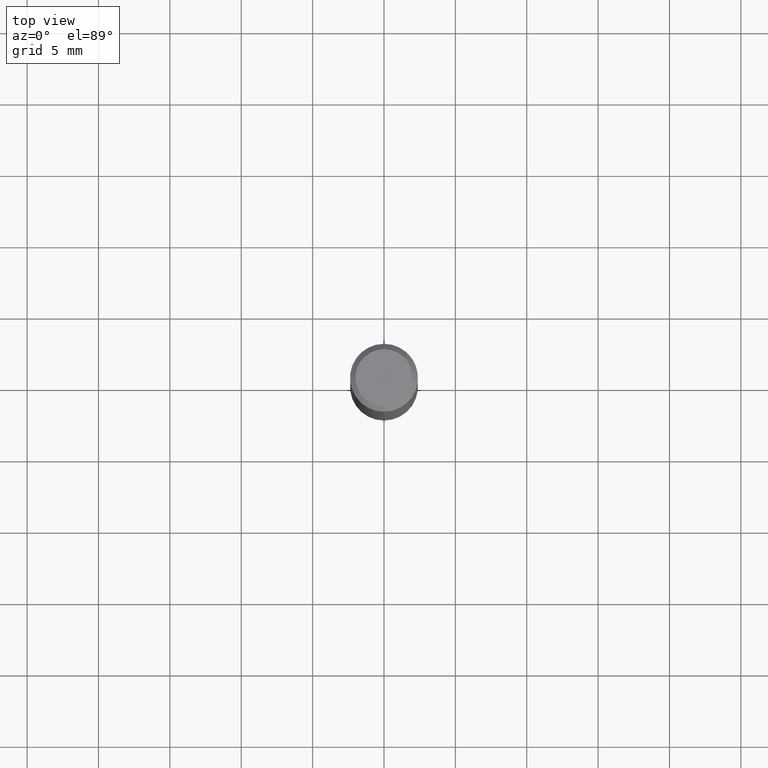
[diagram: clean part render]
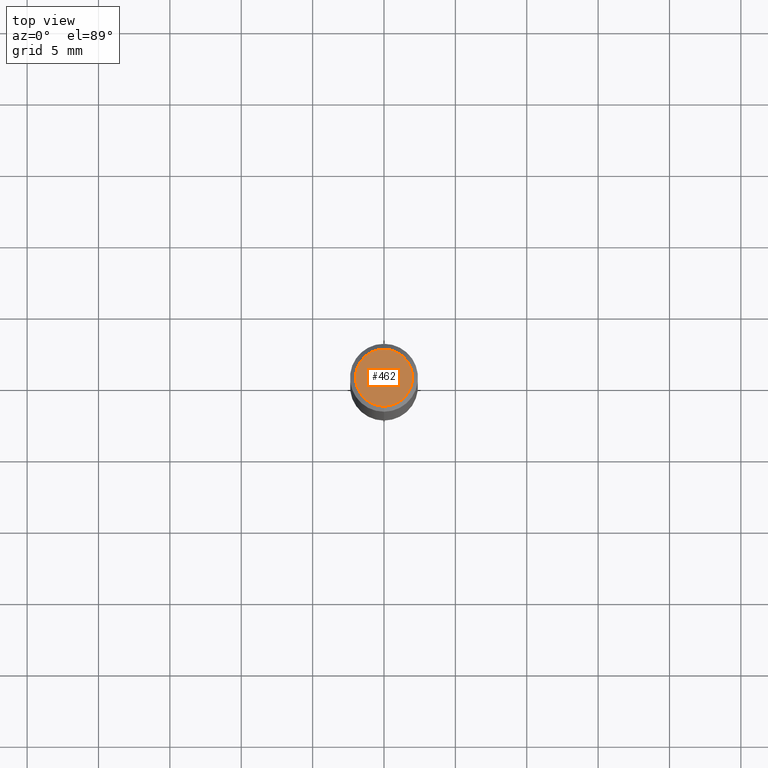
[diagram: same view with one face highlighted and labeled with its STEP entity id]
A machine part, top view. The second image highlights one B-rep face of the part: STEP entity #462.
In plain terms, the highlighted planar face has unit normal (0, -0, -1).
Its self-contained STEP definition (entity closure, byte-faithful):
#12 = DIRECTION ( 'NONE',  ( -6.982962677686265922E-15, -1.000000000000000000, 3.487348433700747709E-15 ) ) ;
#19 = DIRECTION ( 'NONE',  ( 2.448354798421115077E-29, -3.487348433700746920E-15, -1.000000000000000000 ) ) ;
#25 = DIRECTION ( 'NONE',  ( -2.448354798421115077E-29, 3.487348433700747315E-15, 1.000000000000000000 ) ) ;
#82 = CARTESIAN_POINT ( 'NONE',  ( 4.968921432832621187E-45, -7.077552806948386827E-31, -2.029494024328891706E-16 ) ) ;
#106 = FACE_OUTER_BOUND ( 'NONE', #492, .T. ) ;
#115 = AXIS2_PLACEMENT_3D ( 'NONE', #288, #25, #183 ) ;
#121 = CIRCLE ( 'NONE', #352, 0.07874999999999997280 ) ;
#122 = ORIENTED_EDGE ( 'NONE', *, *, #386, .T. ) ;
#183 = DIRECTION ( 'NONE',  ( -6.982962677686265922E-15, -1.000000000000000000, 3.487348433700747709E-15 ) ) ;
#214 = CARTESIAN_POINT ( 'NONE',  ( 6.022805309504405235E-16, 0.07874999999999997280, -4.775780915868230078E-16 ) ) ;
#287 = AXIS2_PLACEMENT_3D ( 'NONE', #423, #19, #289 ) ;
#288 = CARTESIAN_POINT ( 'NONE',  ( 4.968921432832621187E-45, -7.077552806948386827E-31, -2.029494024328891706E-16 ) ) ;
#289 = DIRECTION ( 'NONE',  ( 6.982962677686265922E-15, 1.000000000000000000, -3.487348433700746920E-15 ) ) ;
#296 = CARTESIAN_POINT ( 'NONE',  ( -5.917179523077941910E-16, -0.07874999999999997280, 7.167928672104461734E-17 ) ) ;
#320 = CIRCLE ( 'NONE', #115, 0.07874999999999997280 ) ;
#347 = ORIENTED_EDGE ( 'NONE', *, *, #350, .T. ) ;
#350 = EDGE_CURVE ( 'NONE', #391, #403, #121, .T. ) ;
#352 = AXIS2_PLACEMENT_3D ( 'NONE', #82, #368, #12 ) ;
#368 = DIRECTION ( 'NONE',  ( -2.448354798421115077E-29, 3.487348433700747315E-15, 1.000000000000000000 ) ) ;
#386 = EDGE_CURVE ( 'NONE', #403, #391, #320, .T. ) ;
#391 = VERTEX_POINT ( 'NONE', #296 ) ;
#403 = VERTEX_POINT ( 'NONE', #214 ) ;
#423 = CARTESIAN_POINT ( 'NONE',  ( 5.499083108677932471E-16, 0.07874999999999997280, -3.761033903703783979E-16 ) ) ;
#461 = PLANE ( 'NONE',  #287 ) ;
#462 = ADVANCED_FACE ( 'NONE', ( #106 ), #461, .F. ) ;
#492 = EDGE_LOOP ( 'NONE', ( #122, #347 ) ) ;